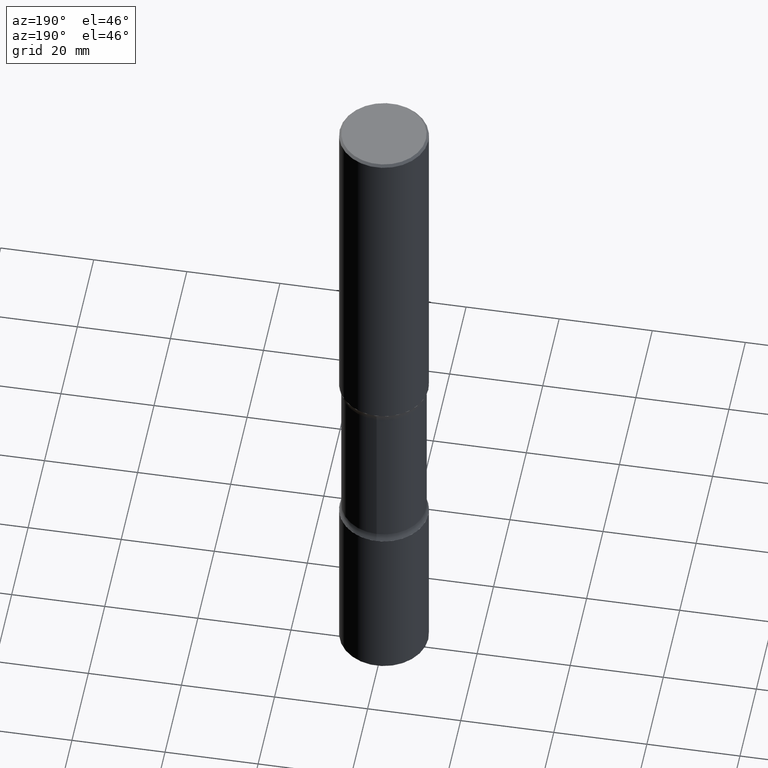
[diagram: clean part render]
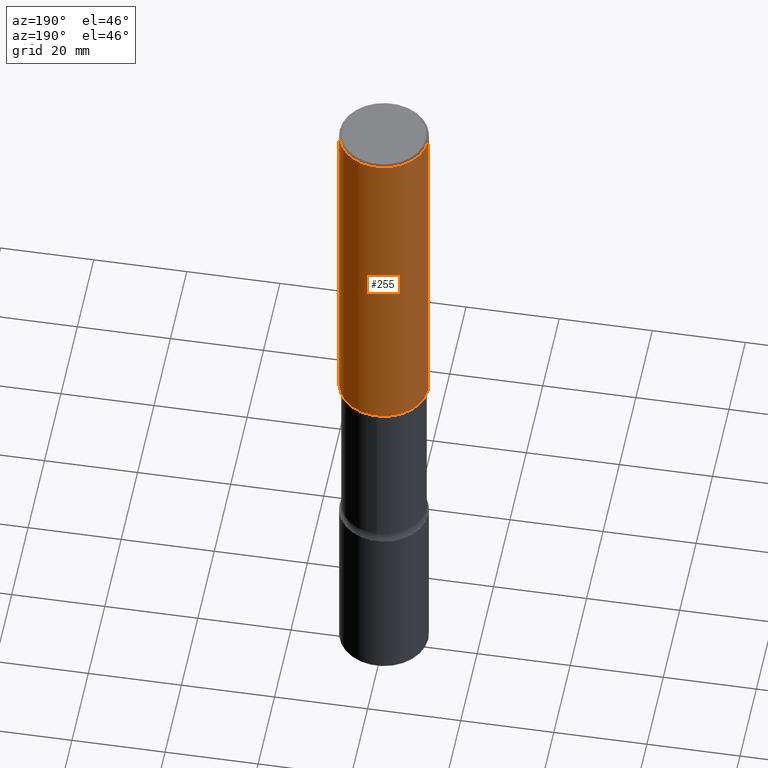
[diagram: same view with one face highlighted and labeled with its STEP entity id]
A machine part, auxiliary view. The second image highlights one B-rep face of the part: STEP entity #255.
In plain terms, the highlighted cylindrical surface (partial cylindrical patch) has radius 9.525 mm, axis along (-0, 0, 1).
Its self-contained STEP definition (entity closure, byte-faithful):
#15 = CIRCLE ( 'NONE', #361, 0.3750000000000003886 ) ;
#33 = AXIS2_PLACEMENT_3D ( 'NONE', #124, #427, #43 ) ;
#43 = DIRECTION ( 'NONE',  ( 1.000000000000000000, -6.982962677686265922E-15, 0.000000000000000000 ) ) ;
#51 = LINE ( 'NONE', #128, #491 ) ;
#63 = EDGE_CURVE ( 'NONE', #386, #408, #320, .T. ) ;
#67 = CARTESIAN_POINT ( 'NONE',  ( 0.3750000000000001110, -2.642516375941188423E-15, -0.02000000000000006981 ) ) ;
#72 = LINE ( 'NONE', #384, #208 ) ;
#124 = CARTESIAN_POINT ( 'NONE',  ( 4.890937612370289799E-31, -6.982962677686315028E-17, -0.02000000000000006981 ) ) ;
#128 = CARTESIAN_POINT ( 'NONE',  ( 0.3750000000000002220, -2.618611004132351594E-15, 1.828566290923477043E-29 ) ) ;
#143 = EDGE_CURVE ( 'NONE', #445, #416, #15, .T. ) ;
#182 = CARTESIAN_POINT ( 'NONE',  ( 0.000000000000000000, 0.000000000000000000, 0.000000000000000000 ) ) ;
#208 = VECTOR ( 'NONE', #249, 39.37007874015748143 ) ;
#243 = EDGE_CURVE ( 'NONE', #445, #386, #51, .T. ) ;
#249 = DIRECTION ( 'NONE',  ( -2.445468806185136877E-29, 3.491481338843145188E-15, 1.000000000000000000 ) ) ;
#255 = ADVANCED_FACE ( 'NONE', ( #473 ), #476, .T. ) ;
#264 = ORIENTED_EDGE ( 'NONE', *, *, #243, .F. ) ;
#265 = DIRECTION ( 'NONE',  ( -2.445468806185136877E-29, 3.491481338843145188E-15, 1.000000000000000000 ) ) ;
#266 = DIRECTION ( 'NONE',  ( -2.445468806185136597E-29, 3.491481338843145583E-15, 1.000000000000000000 ) ) ;
#310 = DIRECTION ( 'NONE',  ( 1.000000000000000000, -6.982962677686266711E-15, 4.876176775795935793E-29 ) ) ;
#320 = CIRCLE ( 'NONE', #33, 0.3750000000000001110 ) ;
#322 = ORIENTED_EDGE ( 'NONE', *, *, #143, .T. ) ;
#335 = CARTESIAN_POINT ( 'NONE',  ( 0.3750000000000003886, -1.309305502066178637E-14, -2.999999999999999112 ) ) ;
#350 = DIRECTION ( 'NONE',  ( 1.000000000000000000, -6.982962677686265922E-15, 0.000000000000000000 ) ) ;
#361 = AXIS2_PLACEMENT_3D ( 'NONE', #395, #266, #350 ) ;
#384 = CARTESIAN_POINT ( 'NONE',  ( -0.3750000000000002220, 2.664535259100377275E-15, -1.844600658845590719E-29 ) ) ;
#386 = VERTEX_POINT ( 'NONE', #67 ) ;
#395 = CARTESIAN_POINT ( 'NONE',  ( 7.336406418555407548E-29, -1.047444401652943320E-14, -2.999999999999999112 ) ) ;
#408 = VERTEX_POINT ( 'NONE', #444 ) ;
#416 = VERTEX_POINT ( 'NONE', #492 ) ;
#427 = DIRECTION ( 'NONE',  ( -2.445468806185136597E-29, 3.491481338843145583E-15, 1.000000000000000000 ) ) ;
#431 = AXIS2_PLACEMENT_3D ( 'NONE', #182, #432, #310 ) ;
#432 = DIRECTION ( 'NONE',  ( -2.445468806185136597E-29, 3.491481338843145583E-15, 1.000000000000000000 ) ) ;
#444 = CARTESIAN_POINT ( 'NONE',  ( -0.3750000000000001110, 2.548781377355487113E-15, -0.02000000000000006981 ) ) ;
#445 = VERTEX_POINT ( 'NONE', #335 ) ;
#452 = ORIENTED_EDGE ( 'NONE', *, *, #63, .F. ) ;
#473 = FACE_OUTER_BOUND ( 'NONE', #505, .T. ) ;
#476 = CYLINDRICAL_SURFACE ( 'NONE', #431, 0.3750000000000002220 ) ;
#491 = VECTOR ( 'NONE', #265, 39.37007874015748143 ) ;
#492 = CARTESIAN_POINT ( 'NONE',  ( -0.3750000000000003886, -2.607601562552767029E-15, -2.999999999999999112 ) ) ;
#498 = EDGE_CURVE ( 'NONE', #416, #408, #72, .T. ) ;
#505 = EDGE_LOOP ( 'NONE', ( #322, #540, #452, #264 ) ) ;
#540 = ORIENTED_EDGE ( 'NONE', *, *, #498, .T. ) ;